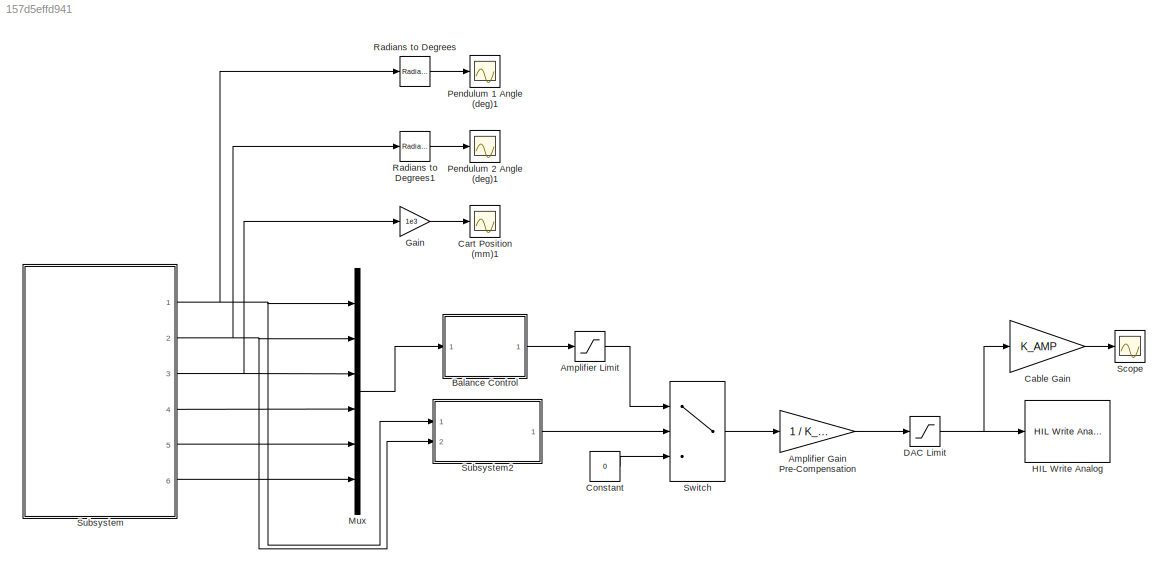
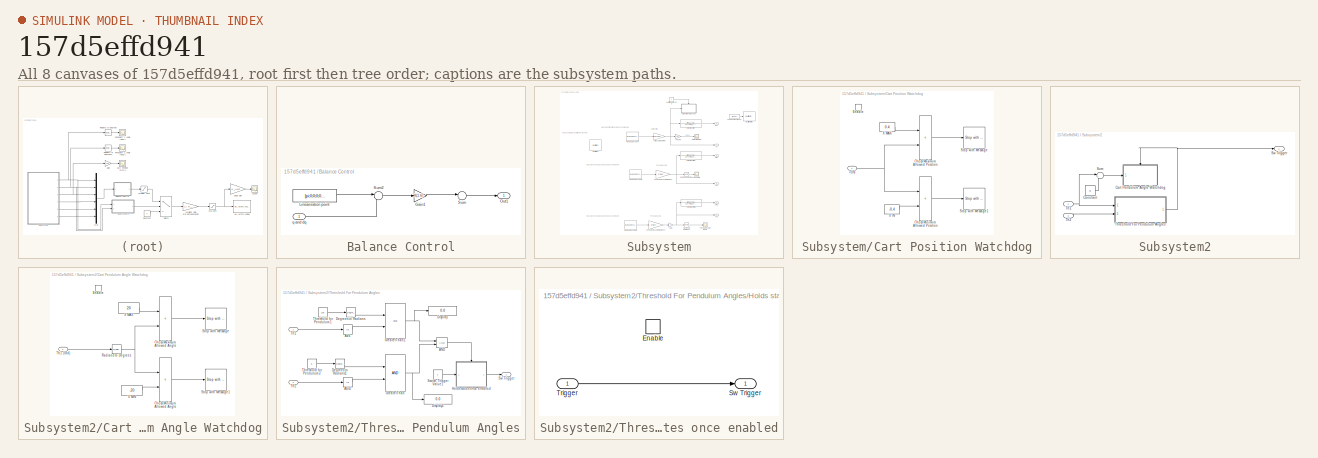
[diagram: thumbnail index - all 8 canvases of the model, root first then tree order]
MODEL slx_157d5effd941
KIND model
CONFIG AbsTol = auto
CONFIG EnableMultiTasking = on
CONFIG FixedStep = 0.002
CONFIG MaxStep = auto
CONFIG MinStep = auto
CONFIG RelTol = 1e-3
CONFIG SampleTimeConstraint = Unconstrained
CONFIG SolverName = ode1
CONFIG StartTime = 0.0
CONFIG StopTime = 60
BLOCK [Gain] Amplifier Gain Pre-Compensation
  Gain = 1 / K_AMP
  OutDataTypeStr = Inherit: Same as input
  ParamDataTypeStr = Inherit: Same as input
  SaturateOnIntegerOverflow = on
BLOCK [Saturate] Amplifier Limit
  LowerLimit = -24
  UpperLimit = 24
BLOCK [SubSystem] Balance Control
  Ports = [1, 1]
  RequestExecContextInheritance = off
BLOCK [Gain] Balance Control/Gain1
  Gain = K(1:6)
  Multiplication = Matrix(K*u)
BLOCK [Constant] Balance Control/Linearisation point
  Value = [pi;0;0;0;0;0]
BLOCK [Outport] Balance Control/Out1
BLOCK [Sum] Balance Control/Sum
  Inputs = |-+
  Ports = [2, 1]
BLOCK [Sum] Balance Control/Sum2
  Inputs = |-+
  Ports = [2, 1]
BLOCK [Inport] Balance Control/q and dq
BLOCK [Gain] Cable Gain
  Gain = K_AMP
  OutDataTypeStr = Inherit: Same as input
  ParamDataTypeStr = Inherit: Same as input
  SaturateOnIntegerOverflow = on
BLOCK [Scope] Cart Position (mm)1
  Floating = off
  NumInputPorts = 1
  Ports = [1]
  ScopeSpecificationString = Simulink.scopes.TimeScopeBlockCfg('CurrentConfiguration', extmgr.ConfigurationSet(extmgr.Configuration('Core','General UI',true),extmgr.Configuration('Core','Source UI',true),extmgr.Configuration('Sources','WiredSimulink',true,'DataLoggingVariableName','ScopeData1','DataLogging',true,'DataLoggingSaveFormat','StructureWithTime'),extmgr.Configuration('Visuals','Time Domain',true,'SerializedDisplays'...<+1490ch>
BLOCK [Constant] Constant
  Value = 0
BLOCK [Saturate] DAC Limit
  LowerLimit = -10
  UpperLimit = 10
BLOCK [Gain] Gain
  Gain = 1e3
BLOCK [Reference] HIL Write Analog  REF=quarc_library/Data Acquisition/Generic/Immediate I//O/HIL Write Analog
  AttributesFormatString = (%<object_name>)
  Ports = [1]
  SourceBlock = quarc_library/Data Acquisition/Generic/Immediate I//O/HIL Write Analog
  SourceProductName = QUARC Targets
  SourceType = HIL Write Analog
  UserDataPersistent = on
BLOCK [Mux] Mux
  DisplayOption = bar
  Inputs = 6
  Ports = [6, 1]
BLOCK [Scope] Pendulum 1 Angle (deg)1
  Floating = off
  NumInputPorts = 1
  Ports = [1]
  ScopeSpecificationString = Simulink.scopes.TimeScopeBlockCfg('CurrentConfiguration', extmgr.ConfigurationSet(extmgr.Configuration('Core','General UI',true),extmgr.Configuration('Core','Source UI',true),extmgr.Configuration('Sources','WiredSimulink',true,'DataLoggingVariableName','ScopeData2'),extmgr.Configuration('Visuals','Time Domain',true,'SerializedDisplays',{struct('MinYLimReal','-23.53271','MaxYLimReal','211.79443','Y...<+1458ch>
BLOCK [Scope] Pendulum 2 Angle (deg)1
  Floating = off
  NumInputPorts = 1
  Ports = [1]
  ScopeSpecificationString = Simulink.scopes.TimeScopeBlockCfg('CurrentConfiguration', extmgr.ConfigurationSet(extmgr.Configuration('Core','General UI',true),extmgr.Configuration('Core','Source UI',true),extmgr.Configuration('Sources','WiredSimulink',true,'DataLoggingVariableName','ScopeData3','DataLogging',true,'DataLoggingSaveFormat','StructureWithTime'),extmgr.Configuration('Visuals','Time Domain',true,'SerializedDisplays'...<+1518ch>
BLOCK [Reference] Radians to Degrees  REF=simulink_extras/Transformations/Radians
to Degrees
  Ports = [1, 1]
  SourceBlock = simulink_extras/Transformations/Radians\nto Degrees
  SourceProductBaseCode = SL
  SourceType = RadiansToDegrees
BLOCK [Reference] Radians to Degrees1  REF=simulink_extras/Transformations/Radians
to Degrees
  Ports = [1, 1]
  SourceBlock = simulink_extras/Transformations/Radians\nto Degrees
  SourceProductBaseCode = SL
  SourceType = RadiansToDegrees
BLOCK [Scope] Scope
  Floating = off
  NumInputPorts = 1
  Ports = [1]
  ScopeSpecificationString = Simulink.scopes.TimeScopeBlockCfg('CurrentConfiguration', extmgr.ConfigurationSet(extmgr.Configuration('Core','General UI',true),extmgr.Configuration('Core','Source UI',true),extmgr.Configuration('Sources','WiredSimulink',true,'DataLoggingVariableName','ScopeData4','DataLogging',true,'DataLoggingSaveFormat','Array'),extmgr.Configuration('Visuals','Time Domain',true,'SerializedDisplays',{struct('Mi...<+1454ch>
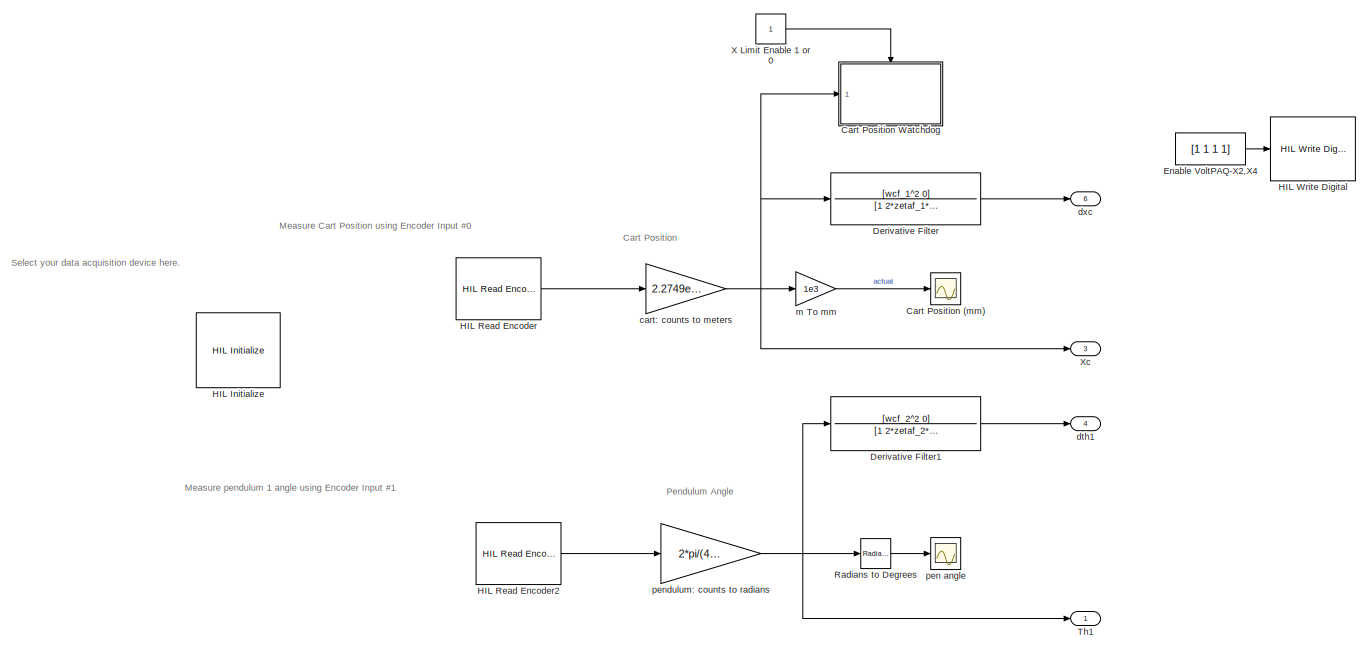
[diagram: Subsystem - part 1/2, full width, middle band]
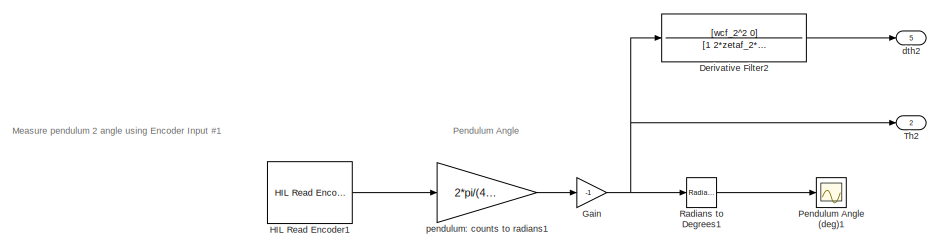
[diagram: Subsystem - part 2/2, bottom center region]
BLOCK [SubSystem] Subsystem
  Ports = [0, 6]
  RequestExecContextInheritance = off
BLOCK [Scope] Subsystem/Cart Position (mm)
  Floating = off
  NumInputPorts = 1
  Ports = [1]
  ScopeSpecificationString = Simulink.scopes.TimeScopeBlockCfg('CurrentConfiguration', extmgr.ConfigurationSet(extmgr.Configuration('Core','General UI',true),extmgr.Configuration('Core','Source UI',true),extmgr.Configuration('Sources','WiredSimulink',true,'DataLogging',true,'DataLoggingVariableName','data_xc','DataLoggingSaveFormat','Array','DataLoggingDecimation','1','DataLoggingDecimateData',true),extmgr.Configuration('Visu...<+1950ch>
BLOCK [SubSystem] Subsystem/Cart Position Watchdog
  Ports = [1, 0, 1]
  RequestExecContextInheritance = off
  TreatAsAtomicUnit = on
BLOCK [RelationalOperator] Subsystem/Cart Position Watchdog/Check Maximum Allowed Position
  Operator = <
  Ports = [2, 1]
BLOCK [RelationalOperator] Subsystem/Cart Position Watchdog/Check Minimum Allowed Position
  Operator = <
  Ports = [2, 1]
BLOCK [EnablePort] Subsystem/Cart Position Watchdog/Enable
  Ports = []
BLOCK [Reference] Subsystem/Cart Position Watchdog/Stop with Message  REF=quarc_library/Sinks/Error Handling/Stop with Message
  AttributesFormatString = "%<message>"
  Ports = [1]
  SourceBlock = quarc_library/Sinks/Error Handling/Stop with Message
  SourceProductName = QUARC Targets
  SourceType = Stop with Message
BLOCK [Reference] Subsystem/Cart Position Watchdog/Stop with Message1  REF=quarc_library/Sinks/Error Handling/Stop with Message
  AttributesFormatString = "%<message>"
  Ports = [1]
  SourceBlock = quarc_library/Sinks/Error Handling/Stop with Message
  SourceProductName = QUARC Targets
  SourceType = Stop with Message
BLOCK [Constant] Subsystem/Cart Position Watchdog/X IN
  Value = -0.4
BLOCK [Constant] Subsystem/Cart Position Watchdog/X MAX
  Value = 0.4
BLOCK [Inport] Subsystem/Cart Position Watchdog/x (m)
BLOCK [TransferFcn] Subsystem/Derivative Filter
  Denominator = [1 2*zetaf_1*wcf_1 wcf_1^2]
  Numerator = [wcf_1^2 0]
BLOCK [TransferFcn] Subsystem/Derivative Filter1
  Denominator = [1 2*zetaf_2*wcf_2 wcf_2^2]
  Numerator = [wcf_2^2 0]
BLOCK [TransferFcn] Subsystem/Derivative Filter2
  Denominator = [1 2*zetaf_2*wcf_2 wcf_2^2]
  Numerator = [wcf_2^2 0]
BLOCK [Constant] Subsystem/Enable VoltPAQ-X2,X4
  Value = [1 1 1 1]
BLOCK [Gain] Subsystem/Gain
  Gain = -1
BLOCK [Reference] Subsystem/HIL Initialize  REF=quarc_library/Data Acquisition/Generic/Configuration/HIL Initialize
  AttributesFormatString = %<object_name> (%<board_type>-%<board_number>)
  Ports = []
  SourceBlock = quarc_library/Data Acquisition/Generic/Configuration/HIL Initialize
  SourceProductName = QUARC Targets
  SourceType = HIL Initialize
  UserDataPersistent = on
BLOCK [Reference] Subsystem/HIL Read Encoder  REF=quarc_library/Data Acquisition/Generic/Immediate I//O/HIL Read Encoder
  AttributesFormatString = (%<object_name>)
  Ports = [0, 1]
  SourceBlock = quarc_library/Data Acquisition/Generic/Immediate I//O/HIL Read Encoder
  SourceProductName = QUARC Targets
  SourceType = HIL Read Encoder
  UserDataPersistent = on
BLOCK [Reference] Subsystem/HIL Read Encoder1  REF=quarc_library/Data Acquisition/Generic/Immediate I//O/HIL Read Encoder
  AttributesFormatString = (%<object_name>)
  Ports = [0, 1]
  SourceBlock = quarc_library/Data Acquisition/Generic/Immediate I//O/HIL Read Encoder
  SourceProductName = QUARC Targets
  SourceType = HIL Read Encoder
  UserDataPersistent = on
BLOCK [Reference] Subsystem/HIL Read Encoder2  REF=quarc_library/Data Acquisition/Generic/Immediate I//O/HIL Read Encoder
  AttributesFormatString = (%<object_name>)
  Ports = [0, 1]
  SourceBlock = quarc_library/Data Acquisition/Generic/Immediate I//O/HIL Read Encoder
  SourceProductName = QUARC Targets
  SourceType = HIL Read Encoder
  UserDataPersistent = on
BLOCK [Reference] Subsystem/HIL Write Digital  REF=quarc_library/Data Acquisition/Generic/Immediate I//O/HIL Write Digital
  AttributesFormatString = (%<object_name>)
  Ports = [1]
  SourceBlock = quarc_library/Data Acquisition/Generic/Immediate I//O/HIL Write Digital
  SourceProductName = QUARC Targets
  SourceType = HIL Write Digital
  UserDataPersistent = on
BLOCK [Scope] Subsystem/Pendulum Angle (deg)1
  Floating = off
  NumInputPorts = 1
  Ports = [1]
  ScopeSpecificationString = Simulink.scopes.TimeScopeBlockCfg('CurrentConfiguration', extmgr.ConfigurationSet(extmgr.Configuration('Core','General UI',true),extmgr.Configuration('Core','Source UI',true),extmgr.Configuration('Sources','WiredSimulink',true,'DataLogging',true,'DataLoggingVariableName','ScopeData1','DataLoggingSaveFormat','Array','DataLoggingDecimation','1'),extmgr.Configuration('Visuals','Time Domain',true,'Tim...<+2124ch>
BLOCK [Reference] Subsystem/Radians to Degrees  REF=simulink_extras/Transformations/Radians
to Degrees
  Ports = [1, 1]
  SourceBlock = simulink_extras/Transformations/Radians\nto Degrees
  SourceProductBaseCode = SL
  SourceType = RadiansToDegrees
BLOCK [Reference] Subsystem/Radians to Degrees1  REF=simulink_extras/Transformations/Radians
to Degrees
  Ports = [1, 1]
  SourceBlock = simulink_extras/Transformations/Radians\nto Degrees
  SourceProductBaseCode = SL
  SourceType = RadiansToDegrees
BLOCK [Outport] Subsystem/Th1
BLOCK [Outport] Subsystem/Th2
  Port = 2
BLOCK [Constant] Subsystem/X Limit Enable 1 or 0
BLOCK [Outport] Subsystem/Xc
  Port = 3
BLOCK [Gain] Subsystem/cart: counts to meters
  Gain = 2.2749e-05
  OutDataTypeStr = Inherit: Same as input
  ParamDataTypeStr = Inherit: Same as input
  SaturateOnIntegerOverflow = on
BLOCK [Outport] Subsystem/dth1
  Port = 4
BLOCK [Outport] Subsystem/dth2
  Port = 5
BLOCK [Outport] Subsystem/dxc
  Port = 6
BLOCK [Gain] Subsystem/m To mm
  Gain = 1e3
  OutDataTypeStr = Inherit: Same as input
  ParamDataTypeStr = Inherit: Same as input
  SaturateOnIntegerOverflow = on
BLOCK [Scope] Subsystem/pen angle
  Floating = off
  NumInputPorts = 1
  Ports = [1]
  ScopeSpecificationString = Simulink.scopes.TimeScopeBlockCfg('CurrentConfiguration', extmgr.ConfigurationSet(extmgr.Configuration('Core','General UI',true),extmgr.Configuration('Core','Source UI',true),extmgr.Configuration('Sources','WiredSimulink',true,'DataLoggingVariableName','th1','DataLogging',true,'DataLoggingSaveFormat','Array'),extmgr.Configuration('Visuals','Time Domain',true,'SerializedDisplays',{struct('MinYLimRe...<+1557ch>
BLOCK [Gain] Subsystem/pendulum: counts to radians
  Gain = 2*pi/(4*1024)
  OutDataTypeStr = Inherit: Same as input
  ParamDataTypeStr = Inherit: Same as input
  SaturateOnIntegerOverflow = on
BLOCK [Gain] Subsystem/pendulum: counts to radians1
  Gain = 2*pi/(4*1024)
  OutDataTypeStr = Inherit: Same as input
  ParamDataTypeStr = Inherit: Same as input
  SaturateOnIntegerOverflow = on
BLOCK [SubSystem] Subsystem2
  Ports = [2, 1]
  RequestExecContextInheritance = off
BLOCK [SubSystem] Subsystem2/Cart Pendulum Angle Watchdog
  Ports = [1, 0, 1]
  RequestExecContextInheritance = off
  TreatAsAtomicUnit = on
BLOCK [RelationalOperator] Subsystem2/Cart Pendulum Angle Watchdog/Check Maximum Allowed Angle
  Operator = <
  Ports = [2, 1]
BLOCK [RelationalOperator] Subsystem2/Cart Pendulum Angle Watchdog/Check Minimum Allowed Angle
  Operator = <
  Ports = [2, 1]
BLOCK [EnablePort] Subsystem2/Cart Pendulum Angle Watchdog/Enable
  Ports = []
BLOCK [Reference] Subsystem2/Cart Pendulum Angle Watchdog/Radians to Degrees  REF=simulink_extras/Transformations/Radians
to Degrees
  Ports = [1, 1]
  SourceBlock = simulink_extras/Transformations/Radians\nto Degrees
  SourceProductBaseCode = SL
  SourceType = RadiansToDegrees
BLOCK [Reference] Subsystem2/Cart Pendulum Angle Watchdog/Stop with Message  REF=quarc_library/Sinks/Error Handling/Stop with Message
  AttributesFormatString = "%<message>"
  Ports = [1]
  SourceBlock = quarc_library/Sinks/Error Handling/Stop with Message
  SourceProductName = QUARC Targets
  SourceType = Stop with Message
BLOCK [Reference] Subsystem2/Cart Pendulum Angle Watchdog/Stop with Message1  REF=quarc_library/Sinks/Error Handling/Stop with Message
  AttributesFormatString = "%<message>"
  Ports = [1]
  SourceBlock = quarc_library/Sinks/Error Handling/Stop with Message
  SourceProductName = QUARC Targets
  SourceType = Stop with Message
BLOCK [Inport] Subsystem2/Cart Pendulum Angle Watchdog/Th1 (rad)
BLOCK [Constant] Subsystem2/Cart Pendulum Angle Watchdog/X MAX
  Value = 20
BLOCK [Constant] Subsystem2/Cart Pendulum Angle Watchdog/X MIN
  Value = -20
BLOCK [Constant] Subsystem2/Constant
  Value = pi
BLOCK [Sum] Subsystem2/Sum
  Inputs = |+-
  Ports = [2, 1]
BLOCK [Outport] Subsystem2/Sw Trigger
BLOCK [Inport] Subsystem2/Th1
BLOCK [Inport] Subsystem2/Th2
  Port = 2
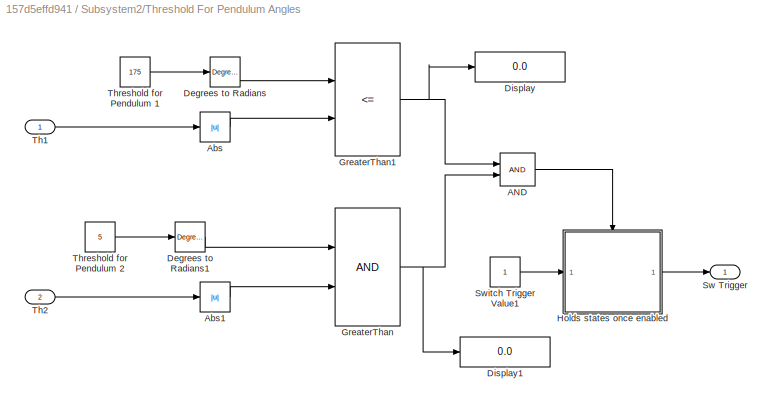
BLOCK [SubSystem] Subsystem2/Threshold For Pendulum Angles
  Ports = [2, 1]
  RequestExecContextInheritance = off
BLOCK [Logic] Subsystem2/Threshold For Pendulum Angles/AND
  AllPortsSameDT = off
  OutDataTypeStr = boolean
  Ports = [2, 1]
BLOCK [Abs] Subsystem2/Threshold For Pendulum Angles/Abs
  SaturateOnIntegerOverflow = off
BLOCK [Abs] Subsystem2/Threshold For Pendulum Angles/Abs1
  SaturateOnIntegerOverflow = off
BLOCK [Reference] Subsystem2/Threshold For Pendulum Angles/Degrees to Radians  REF=simulink_extras/Transformations/Degrees to
Radians
  Ports = [1, 1]
  SourceBlock = simulink_extras/Transformations/Degrees to\nRadians
  SourceProductBaseCode = SL
  SourceType = DegreesToRadians
BLOCK [Reference] Subsystem2/Threshold For Pendulum Angles/Degrees to Radians1  REF=simulink_extras/Transformations/Degrees to
Radians
  Ports = [1, 1]
  SourceBlock = simulink_extras/Transformations/Degrees to\nRadians
  SourceProductBaseCode = SL
  SourceType = DegreesToRadians
BLOCK [Display] Subsystem2/Threshold For Pendulum Angles/Display
  Decimation = 1
  Ports = [1]
BLOCK [Display] Subsystem2/Threshold For Pendulum Angles/Display1
  Decimation = 1
  Ports = [1]
BLOCK [RelationalOperator] Subsystem2/Threshold For Pendulum Angles/GreaterThan
  InputSameDT = off
  OutDataTypeStr = boolean
  Ports = [2, 1]
  RndMeth = Simplest
BLOCK [RelationalOperator] Subsystem2/Threshold For Pendulum Angles/GreaterThan1
  InputSameDT = off
  Operator = <=
  OutDataTypeStr = boolean
  Ports = [2, 1]
  RndMeth = Simplest
BLOCK [SubSystem] Subsystem2/Threshold For Pendulum Angles/Holds states once enabled
  Ports = [1, 1, 1]
  RequestExecContextInheritance = off
  TreatAsAtomicUnit = on
BLOCK [EnablePort] Subsystem2/Threshold For Pendulum Angles/Holds states once enabled/Enable
  Ports = []
BLOCK [Outport] Subsystem2/Threshold For Pendulum Angles/Holds states once enabled/Sw Trigger
  InitialOutput = [0]
  OutDataTypeStr = double
BLOCK [Inport] Subsystem2/Threshold For Pendulum Angles/Holds states once enabled/Trigger
  OutDataTypeStr = double
BLOCK [Outport] Subsystem2/Threshold For Pendulum Angles/Sw Trigger
BLOCK [Constant] Subsystem2/Threshold For Pendulum Angles/Switch Trigger Value1
BLOCK [Inport] Subsystem2/Threshold For Pendulum Angles/Th1
BLOCK [Inport] Subsystem2/Threshold For Pendulum Angles/Th2
  Port = 2
BLOCK [Constant] Subsystem2/Threshold For Pendulum Angles/Threshold for Pendulum 1
  Value = 175
BLOCK [Constant] Subsystem2/Threshold For Pendulum Angles/Threshold for Pendulum 2
  Value = 5
BLOCK [Switch] Switch
  Criteria = u2 > Threshold
  InputSameDT = off
  SaturateOnIntegerOverflow = off
ANNOTATION Subsystem: Cart Position
ANNOTATION Subsystem: Measure Cart Position using Encoder Input #0
ANNOTATION Subsystem: Measure pendulum 1 angle using Encoder Input #1
ANNOTATION Subsystem: Measure pendulum 2 angle using Encoder Input #1
ANNOTATION Subsystem: Pendulum Angle
ANNOTATION Subsystem: Select your data acquisition device here.
LINE Amplifier Gain Pre-Compensation:1 -> DAC Limit:1
LINE Amplifier Limit:1 -> Switch:1
LINE Balance Control/Gain1:1 -> Balance Control/Sum:1
LINE Balance Control/Linearisation point:1 -> Balance Control/Sum2:1
LINE Balance Control/Sum2:1 -> Balance Control/Gain1:1
LINE Balance Control/Sum:1 -> Balance Control/Out1:1
LINE Balance Control/q and dq:1 -> Balance Control/Sum2:2
LINE Balance Control:1 -> Amplifier Limit:1
LINE Cable Gain:1 -> Scope:1
LINE Constant:1 -> Switch:3
NET DAC Limit:1 -> Cable Gain:1, HIL Write Analog:1
LINE Gain:1 -> Cart Position (mm)1:1
LINE Mux:1 -> Balance Control:1
LINE Radians to Degrees1:1 -> Pendulum 2 Angle (deg)1:1
LINE Radians to Degrees:1 -> Pendulum 1 Angle (deg)1:1
LINE Subsystem/Cart Position Watchdog/Check Maximum Allowed Position:1 -> Subsystem/Cart Position Watchdog/Stop with Message:1
LINE Subsystem/Cart Position Watchdog/Check Minimum Allowed Position:1 -> Subsystem/Cart Position Watchdog/Stop with Message1:1
LINE Subsystem/Cart Position Watchdog/X IN:1 -> Subsystem/Cart Position Watchdog/Check Minimum Allowed Position:2
LINE Subsystem/Cart Position Watchdog/X MAX:1 -> Subsystem/Cart Position Watchdog/Check Maximum Allowed Position:1
NET Subsystem/Cart Position Watchdog/x (m):1 -> Subsystem/Cart Position Watchdog/Check Maximum Allowed Position:2, Subsystem/Cart Position Watchdog/Check Minimum Allowed Position:1
LINE Subsystem/Derivative Filter1:1 -> Subsystem/dth1:1
LINE Subsystem/Derivative Filter2:1 -> Subsystem/dth2:1
LINE Subsystem/Derivative Filter:1 -> Subsystem/dxc:1
LINE Subsystem/Enable VoltPAQ-X2,X4:1 -> Subsystem/HIL Write Digital:1
NET Subsystem/Gain:1 -> Subsystem/Derivative Filter2:1, Subsystem/Radians to Degrees1:1, Subsystem/Th2:1
LINE Subsystem/HIL Read Encoder1:1 -> Subsystem/pendulum: counts to radians1:1
LINE Subsystem/HIL Read Encoder2:1 -> Subsystem/pendulum: counts to radians:1
LINE Subsystem/HIL Read Encoder:1 -> Subsystem/cart: counts to meters:1
LINE Subsystem/Radians to Degrees1:1 -> Subsystem/Pendulum Angle (deg)1:1
LINE Subsystem/Radians to Degrees:1 -> Subsystem/pen angle:1
LINE Subsystem/X Limit Enable 1 or 0:1 -> Subsystem/Cart Position Watchdog:enable
NET Subsystem/cart: counts to meters:1 -> Subsystem/Cart Position Watchdog:1, Subsystem/Derivative Filter:1, Subsystem/Xc:1, Subsystem/m To mm:1
LINE Subsystem/m To mm:1 -> Subsystem/Cart Position (mm):1
LINE Subsystem/pendulum: counts to radians1:1 -> Subsystem/Gain:1
NET Subsystem/pendulum: counts to radians:1 -> Subsystem/Derivative Filter1:1, Subsystem/Radians to Degrees:1, Subsystem/Th1:1
LINE Subsystem2/Cart Pendulum Angle Watchdog/Check Maximum Allowed Angle:1 -> Subsystem2/Cart Pendulum Angle Watchdog/Stop with Message:1
LINE Subsystem2/Cart Pendulum Angle Watchdog/Check Minimum Allowed Angle:1 -> Subsystem2/Cart Pendulum Angle Watchdog/Stop with Message1:1
NET Subsystem2/Cart Pendulum Angle Watchdog/Radians to Degrees:1 -> Subsystem2/Cart Pendulum Angle Watchdog/Check Maximum Allowed Angle:2, Subsystem2/Cart Pendulum Angle Watchdog/Check Minimum Allowed Angle:1
LINE Subsystem2/Cart Pendulum Angle Watchdog/Th1 (rad):1 -> Subsystem2/Cart Pendulum Angle Watchdog/Radians to Degrees:1
LINE Subsystem2/Cart Pendulum Angle Watchdog/X MAX:1 -> Subsystem2/Cart Pendulum Angle Watchdog/Check Maximum Allowed Angle:1
LINE Subsystem2/Cart Pendulum Angle Watchdog/X MIN:1 -> Subsystem2/Cart Pendulum Angle Watchdog/Check Minimum Allowed Angle:2
LINE Subsystem2/Constant:1 -> Subsystem2/Sum:2
LINE Subsystem2/Sum:1 -> Subsystem2/Cart Pendulum Angle Watchdog:1
NET Subsystem2/Th1:1 -> Subsystem2/Sum:1, Subsystem2/Threshold For Pendulum Angles:1
LINE Subsystem2/Th2:1 -> Subsystem2/Threshold For Pendulum Angles:2
LINE Subsystem2/Threshold For Pendulum Angles/AND:1 -> Subsystem2/Threshold For Pendulum Angles/Holds states once enabled:enable
LINE Subsystem2/Threshold For Pendulum Angles/Abs1:1 -> Subsystem2/Threshold For Pendulum Angles/GreaterThan:2
LINE Subsystem2/Threshold For Pendulum Angles/Abs:1 -> Subsystem2/Threshold For Pendulum Angles/GreaterThan1:2
LINE Subsystem2/Threshold For Pendulum Angles/Degrees to Radians1:1 -> Subsystem2/Threshold For Pendulum Angles/GreaterThan:1
LINE Subsystem2/Threshold For Pendulum Angles/Degrees to Radians:1 -> Subsystem2/Threshold For Pendulum Angles/GreaterThan1:1
NET Subsystem2/Threshold For Pendulum Angles/GreaterThan1:1 -> Subsystem2/Threshold For Pendulum Angles/AND:1, Subsystem2/Threshold For Pendulum Angles/Display:1
NET Subsystem2/Threshold For Pendulum Angles/GreaterThan:1 -> Subsystem2/Threshold For Pendulum Angles/AND:2, Subsystem2/Threshold For Pendulum Angles/Display1:1
LINE Subsystem2/Threshold For Pendulum Angles/Holds states once enabled/Trigger:1 -> Subsystem2/Threshold For Pendulum Angles/Holds states once enabled/Sw Trigger:1
LINE Subsystem2/Threshold For Pendulum Angles/Holds states once enabled:1 -> Subsystem2/Threshold For Pendulum Angles/Sw Trigger:1
LINE Subsystem2/Threshold For Pendulum Angles/Switch Trigger Value1:1 -> Subsystem2/Threshold For Pendulum Angles/Holds states once enabled:1
LINE Subsystem2/Threshold For Pendulum Angles/Th1:1 -> Subsystem2/Threshold For Pendulum Angles/Abs:1
LINE Subsystem2/Threshold For Pendulum Angles/Th2:1 -> Subsystem2/Threshold For Pendulum Angles/Abs1:1
LINE Subsystem2/Threshold For Pendulum Angles/Threshold for Pendulum 1:1 -> Subsystem2/Threshold For Pendulum Angles/Degrees to Radians:1
LINE Subsystem2/Threshold For Pendulum Angles/Threshold for Pendulum 2:1 -> Subsystem2/Threshold For Pendulum Angles/Degrees to Radians1:1
NET Subsystem2/Threshold For Pendulum Angles:1 -> Subsystem2/Cart Pendulum Angle Watchdog:enable, Subsystem2/Sw Trigger:1
LINE Subsystem2:1 -> Switch:2
NET Subsystem:1 -> Mux:1, Radians to Degrees:1, Subsystem2:1
NET Subsystem:2 -> Mux:2, Radians to Degrees1:1, Subsystem2:2
NET Subsystem:3 -> Gain:1, Mux:3
LINE Subsystem:4 -> Mux:4
LINE Subsystem:5 -> Mux:5
LINE Subsystem:6 -> Mux:6
LINE Switch:1 -> Amplifier Gain Pre-Compensation:1
note: NET lines group one-source signal fan-out (src -> all destinations, sorted); 1:1 wires keep LINE
